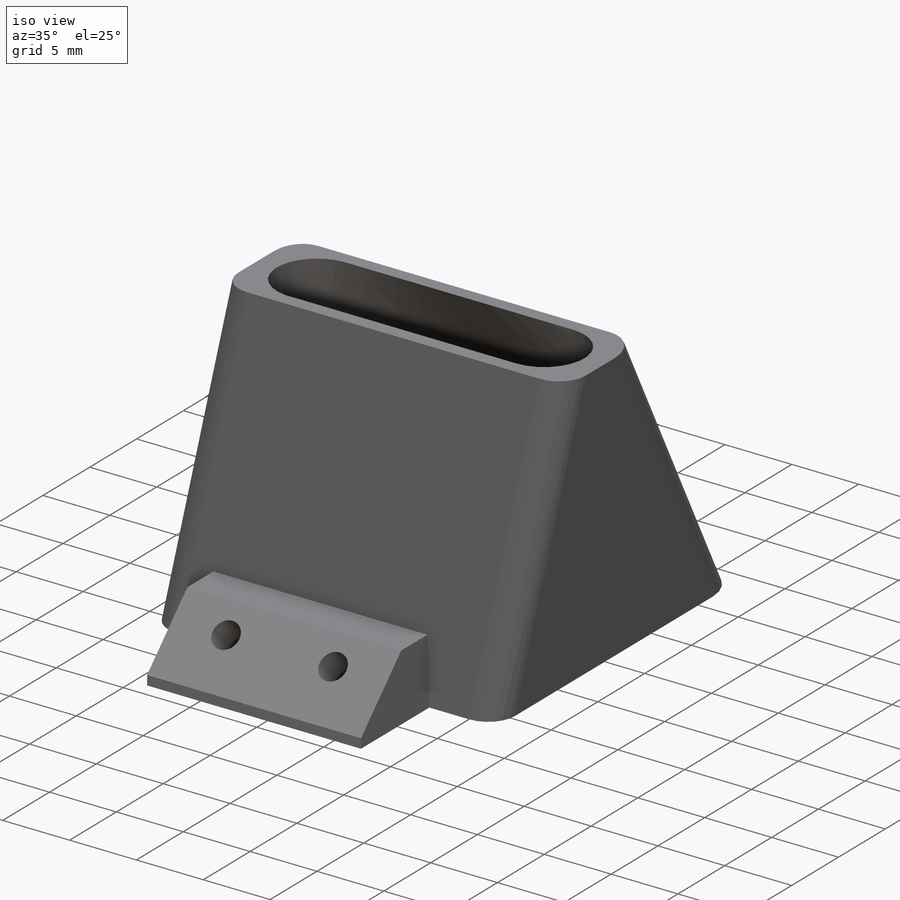
[diagram: iso view]
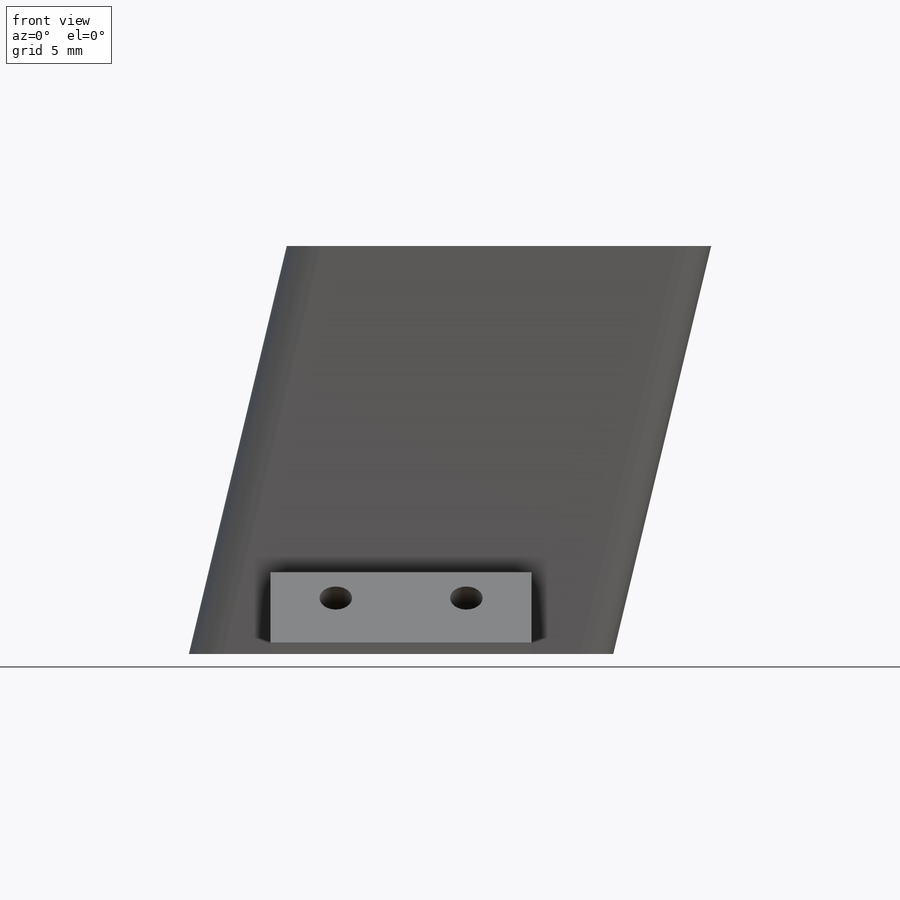
[diagram: front view]
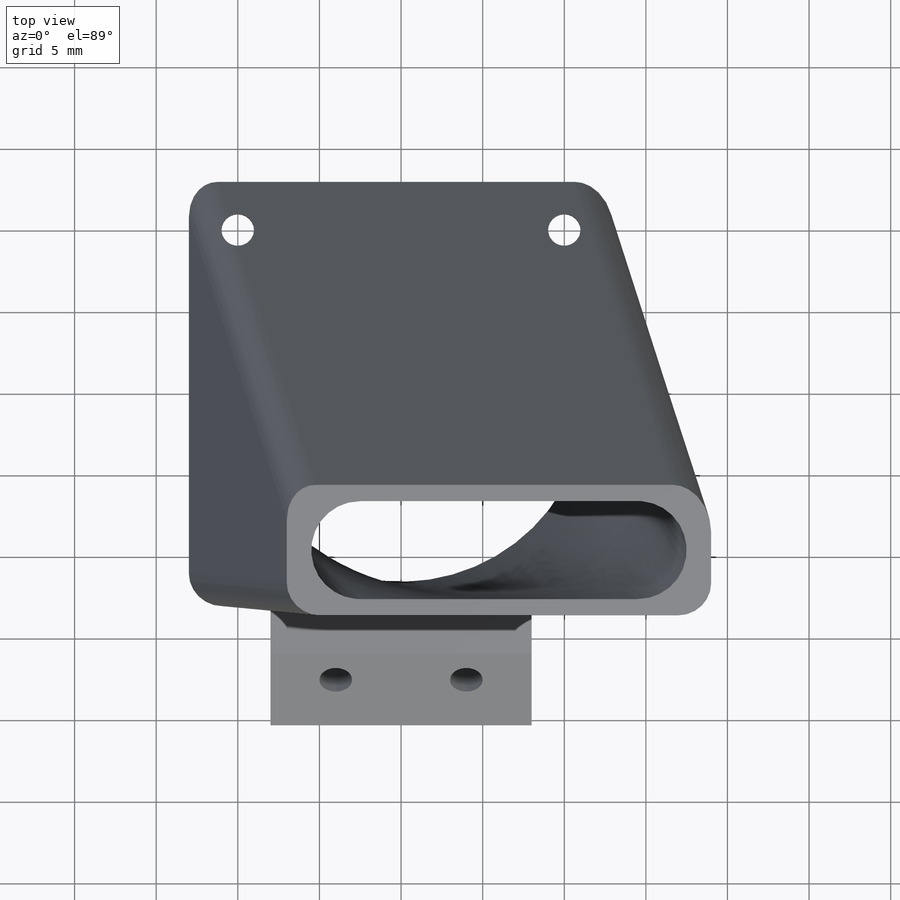
[diagram: top view]
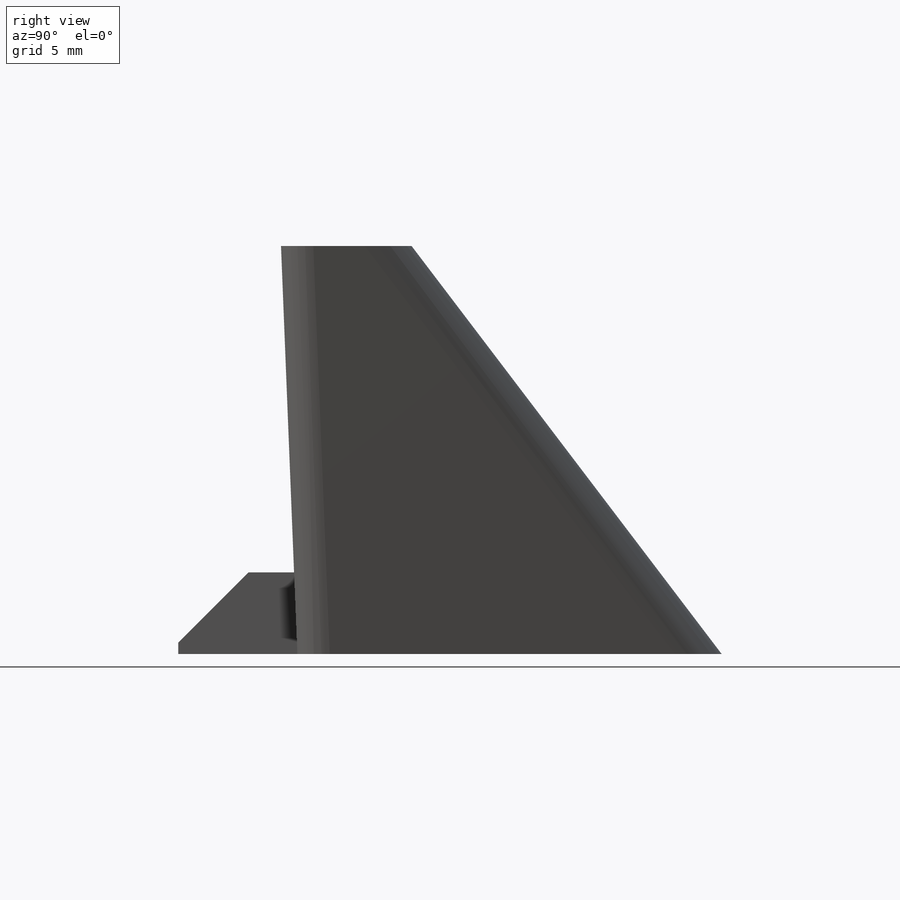
[diagram: right view]
SOLIDWORKS PART (.sldprt)
format: sldprt  version: not decoded by parser v0  size: 339,456 bytes
history: native  units: mm
features: sketch x9, cut_extrude x3, chamfer x2, material x1, plane x1, fillet x1, extrude x1, mirror x1, delete_body x1 (+12 scaffold rows collapsed)
feature tree (32):
  scaffold x12  (default folders/planes/origin — collapsed)
  material  "Material <not specified>"
  sketch  "Sketch1"  dims[D1=26.0mm D2=26.0mm]
  plane  "Plane1"  Offset=25mm
  sketch  "Sketch3"  dims[c1.D1=26.0mm c2.D1=45.0deg]
  sketch  "Sketch2"  dims[D1=6.0mm D2=8.0mm D3=26.0mm D4=6.0mm]
  sketch  "Sketch5"  dims[D1=23.0mm]
  sketch  "Sketch6"  dims[D2=3.0mm D1=17.0mm D3=6.0mm]
  sketch  "Sketch7"  dims[D3=2.0mm D1=20.0mm D2=20.0mm]
  cut_extrude  "Cut-Extrude1"  Depth=6mm
  fillet  "Fillet1"  Radius=2mm
  sketch  "Sketch9"  dims[D1=12.0mm D2=8.0mm D3=16.0mm]
  extrude  "Boss-Extrude2"  Depth=5mm
  chamfer  "Chamfer1"  Distance=5mm Angle=45deg
  sketch  "Sketch10"  dims[D3=2.0mm D1=8.0mm D2=10.0mm]
  cut_extrude  "Cut-Extrude2"  [1 undecoded]
  sketch  "Sketch12"  dims[D1=3.5mm]
  cut_extrude  "Cut-Extrude3"  Depth=5mm
  chamfer  "Chamfer2"  Distance=1mm Angle=45deg
  mirror  "Mirror1"
  delete_body  "Body-Delete1"
decode coverage: 15 of 18 modeling features carry decoded parameters
note: 1 parameter value undecoded
note: suppression state not decoded; provenance and decode notes live in map.json
